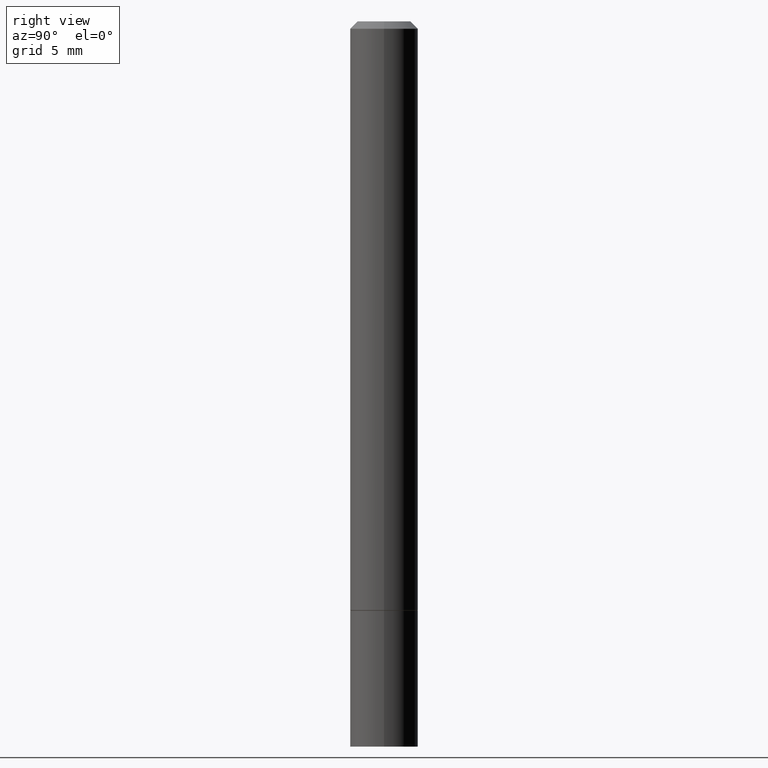
[diagram: clean part render]
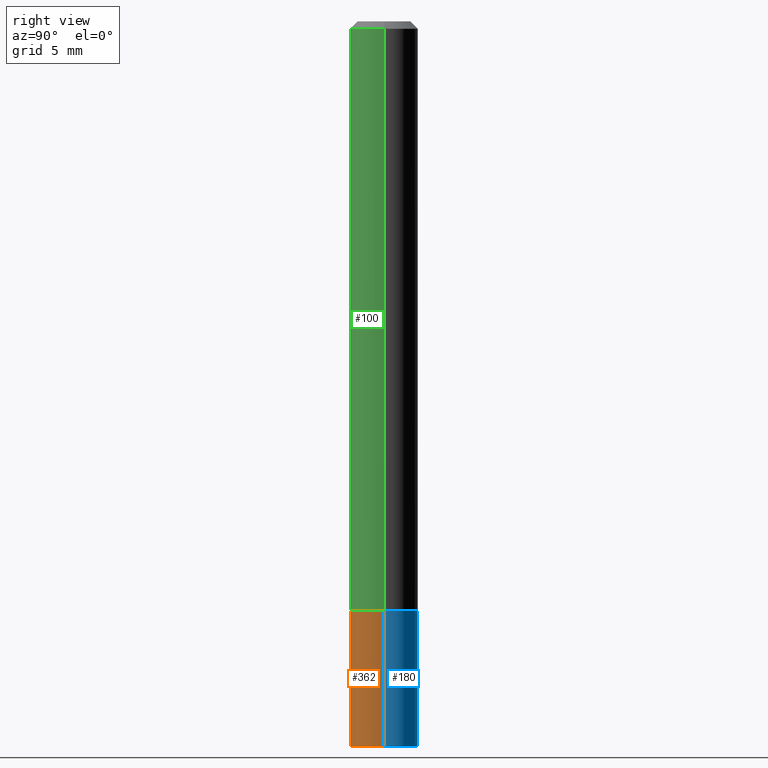
[diagram: same view with three faces highlighted in distinct colors, each labeled with its STEP entity id]
A machine part, right view with three faces highlighted in distinct colors.
Their STEP definitions:

[orange] entity #362 — the highlighted cylindrical surface (edge-blend (fillet) strip) has radius 2.3813 mm, axis along (-0, 0, 1).
#5 = ORIENTED_EDGE ( 'NONE', *, *, #114, .T. ) ;
#6 = VERTEX_POINT ( 'NONE', #240 ) ;
#31 = VERTEX_POINT ( 'NONE', #183 ) ;
#46 = CARTESIAN_POINT ( 'NONE',  ( 0.09375000000000001388, -6.546527510330875041E-16, 4.571415727308690506E-30 ) ) ;
#51 = CARTESIAN_POINT ( 'NONE',  ( -0.09375000000000001388, -5.662176111878106581E-15, -2.000000000000000000 ) ) ;
#55 = CYLINDRICAL_SURFACE ( 'NONE', #160, 0.09375000000000001388 ) ;
#61 = AXIS2_PLACEMENT_3D ( 'NONE', #239, #351, #62 ) ;
#62 = DIRECTION ( 'NONE',  ( 1.000000000000000000, -6.982962677686261189E-15, 0.000000000000000000 ) ) ;
#66 = CIRCLE ( 'NONE', #61, 0.09375000000000001388 ) ;
#70 = DIRECTION ( 'NONE',  ( -2.445468806185136597E-29, 3.491481338843145583E-15, 1.000000000000000000 ) ) ;
#86 = FACE_OUTER_BOUND ( 'NONE', #113, .T. ) ;
#87 = VERTEX_POINT ( 'NONE', #178 ) ;
#103 = LINE ( 'NONE', #134, #116 ) ;
#111 = ORIENTED_EDGE ( 'NONE', *, *, #258, .F. ) ;
#113 = EDGE_LOOP ( 'NONE', ( #111, #5, #319, #255 ) ) ;
#114 = EDGE_CURVE ( 'NONE', #322, #31, #66, .T. ) ;
#116 = VECTOR ( 'NONE', #246, 39.37007874015748143 ) ;
#131 = VECTOR ( 'NONE', #253, 39.37007874015748143 ) ;
#134 = CARTESIAN_POINT ( 'NONE',  ( -0.09375000000000001388, 6.661338147750940229E-16, -4.611501647113973995E-30 ) ) ;
#145 = EDGE_CURVE ( 'NONE', #6, #87, #218, .T. ) ;
#146 = DIRECTION ( 'NONE',  ( 1.000000000000000000, -6.982962677686265922E-15, 4.876176775795935793E-29 ) ) ;
#160 = AXIS2_PLACEMENT_3D ( 'NONE', #284, #282, #146 ) ;
#164 = LINE ( 'NONE', #46, #131 ) ;
#174 = AXIS2_PLACEMENT_3D ( 'NONE', #329, #70, #184 ) ;
#178 = CARTESIAN_POINT ( 'NONE',  ( 0.09375000000000001388, -6.328309926653198928E-15, -1.625000000000000000 ) ) ;
#183 = CARTESIAN_POINT ( 'NONE',  ( 0.09375000000000001388, -7.637615428719378669E-15, -2.000000000000000000 ) ) ;
#184 = DIRECTION ( 'NONE',  ( 1.000000000000000000, -6.982962677686261189E-15, 0.000000000000000000 ) ) ;
#185 = EDGE_CURVE ( 'NONE', #31, #87, #164, .T. ) ;
#218 = CIRCLE ( 'NONE', #174, 0.09375000000000001388 ) ;
#239 = CARTESIAN_POINT ( 'NONE',  ( 4.890937612370273194E-29, -6.982962677686291165E-15, -2.000000000000000000 ) ) ;
#240 = CARTESIAN_POINT ( 'NONE',  ( -0.09375000000000001388, -5.662176111878106581E-15, -1.625000000000000000 ) ) ;
#246 = DIRECTION ( 'NONE',  ( -2.445468806185136877E-29, 3.491481338843145188E-15, 1.000000000000000000 ) ) ;
#253 = DIRECTION ( 'NONE',  ( -2.445468806185136877E-29, 3.491481338843145188E-15, 1.000000000000000000 ) ) ;
#255 = ORIENTED_EDGE ( 'NONE', *, *, #145, .F. ) ;
#258 = EDGE_CURVE ( 'NONE', #322, #6, #103, .T. ) ;
#282 = DIRECTION ( 'NONE',  ( -2.445468806185136597E-29, 3.491481338843145583E-15, 1.000000000000000000 ) ) ;
#284 = CARTESIAN_POINT ( 'NONE',  ( 0.000000000000000000, 0.000000000000000000, 0.000000000000000000 ) ) ;
#319 = ORIENTED_EDGE ( 'NONE', *, *, #185, .T. ) ;
#322 = VERTEX_POINT ( 'NONE', #51 ) ;
#329 = CARTESIAN_POINT ( 'NONE',  ( 3.973886810050846970E-29, -5.673657175620112213E-15, -1.625000000000000000 ) ) ;
#351 = DIRECTION ( 'NONE',  ( -2.445468806185136597E-29, 3.491481338843145583E-15, 1.000000000000000000 ) ) ;
#362 = ADVANCED_FACE ( 'NONE', ( #86 ), #55, .T. ) ;

[blue] entity #180 — the highlighted cylindrical surface (edge-blend (fillet) strip) has radius 2.3813 mm, axis along (-0, 0, 1).
#2 = ORIENTED_EDGE ( 'NONE', *, *, #89, .T. ) ;
#6 = VERTEX_POINT ( 'NONE', #240 ) ;
#11 = EDGE_CURVE ( 'NONE', #87, #6, #217, .T. ) ;
#15 = DIRECTION ( 'NONE',  ( 1.000000000000000000, -6.982962677686261189E-15, 0.000000000000000000 ) ) ;
#31 = VERTEX_POINT ( 'NONE', #183 ) ;
#46 = CARTESIAN_POINT ( 'NONE',  ( 0.09375000000000001388, -6.546527510330875041E-16, 4.571415727308690506E-30 ) ) ;
#51 = CARTESIAN_POINT ( 'NONE',  ( -0.09375000000000001388, -5.662176111878106581E-15, -2.000000000000000000 ) ) ;
#64 = CARTESIAN_POINT ( 'NONE',  ( 4.890937612370273194E-29, -6.982962677686291165E-15, -2.000000000000000000 ) ) ;
#87 = VERTEX_POINT ( 'NONE', #178 ) ;
#89 = EDGE_CURVE ( 'NONE', #31, #322, #313, .T. ) ;
#93 = ORIENTED_EDGE ( 'NONE', *, *, #185, .F. ) ;
#96 = CARTESIAN_POINT ( 'NONE',  ( 3.973886810050846970E-29, -5.673657175620112213E-15, -1.625000000000000000 ) ) ;
#103 = LINE ( 'NONE', #134, #116 ) ;
#109 = ORIENTED_EDGE ( 'NONE', *, *, #11, .F. ) ;
#116 = VECTOR ( 'NONE', #246, 39.37007874015748143 ) ;
#130 = FACE_OUTER_BOUND ( 'NONE', #202, .T. ) ;
#131 = VECTOR ( 'NONE', #253, 39.37007874015748143 ) ;
#134 = CARTESIAN_POINT ( 'NONE',  ( -0.09375000000000001388, 6.661338147750940229E-16, -4.611501647113973995E-30 ) ) ;
#149 = DIRECTION ( 'NONE',  ( -2.445468806185136597E-29, 3.491481338843145583E-15, 1.000000000000000000 ) ) ;
#150 = DIRECTION ( 'NONE',  ( -2.445468806185136597E-29, 3.491481338843145583E-15, 1.000000000000000000 ) ) ;
#153 = ORIENTED_EDGE ( 'NONE', *, *, #258, .T. ) ;
#159 = CYLINDRICAL_SURFACE ( 'NONE', #321, 0.09375000000000001388 ) ;
#164 = LINE ( 'NONE', #46, #131 ) ;
#178 = CARTESIAN_POINT ( 'NONE',  ( 0.09375000000000001388, -6.328309926653198928E-15, -1.625000000000000000 ) ) ;
#180 = ADVANCED_FACE ( 'NONE', ( #130 ), #159, .T. ) ;
#183 = CARTESIAN_POINT ( 'NONE',  ( 0.09375000000000001388, -7.637615428719378669E-15, -2.000000000000000000 ) ) ;
#185 = EDGE_CURVE ( 'NONE', #31, #87, #164, .T. ) ;
#202 = EDGE_LOOP ( 'NONE', ( #2, #153, #109, #93 ) ) ;
#217 = CIRCLE ( 'NONE', #247, 0.09375000000000001388 ) ;
#222 = DIRECTION ( 'NONE',  ( -2.445468806185136597E-29, 3.491481338843145583E-15, 1.000000000000000000 ) ) ;
#240 = CARTESIAN_POINT ( 'NONE',  ( -0.09375000000000001388, -5.662176111878106581E-15, -1.625000000000000000 ) ) ;
#246 = DIRECTION ( 'NONE',  ( -2.445468806185136877E-29, 3.491481338843145188E-15, 1.000000000000000000 ) ) ;
#247 = AXIS2_PLACEMENT_3D ( 'NONE', #96, #150, #15 ) ;
#253 = DIRECTION ( 'NONE',  ( -2.445468806185136877E-29, 3.491481338843145188E-15, 1.000000000000000000 ) ) ;
#258 = EDGE_CURVE ( 'NONE', #322, #6, #103, .T. ) ;
#265 = DIRECTION ( 'NONE',  ( 1.000000000000000000, -6.982962677686261189E-15, 0.000000000000000000 ) ) ;
#275 = CARTESIAN_POINT ( 'NONE',  ( 0.000000000000000000, 0.000000000000000000, 0.000000000000000000 ) ) ;
#313 = CIRCLE ( 'NONE', #359, 0.09375000000000001388 ) ;
#321 = AXIS2_PLACEMENT_3D ( 'NONE', #275, #222, #361 ) ;
#322 = VERTEX_POINT ( 'NONE', #51 ) ;
#359 = AXIS2_PLACEMENT_3D ( 'NONE', #64, #149, #265 ) ;
#361 = DIRECTION ( 'NONE',  ( 1.000000000000000000, -6.982962677686265922E-15, 4.876176775795935793E-29 ) ) ;

[green] entity #100 — the highlighted cylindrical surface (edge-blend (fillet) strip) has radius 2.3812 mm, axis along (-0, 0, 1).
#4 = EDGE_CURVE ( 'NONE', #81, #285, #289, .T. ) ;
#7 = FACE_OUTER_BOUND ( 'NONE', #38, .T. ) ;
#10 = CYLINDRICAL_SURFACE ( 'NONE', #365, 0.09374999999999991673 ) ;
#12 = LINE ( 'NONE', #179, #211 ) ;
#21 = CARTESIAN_POINT ( 'NONE',  ( -0.09374999999999981959, 5.848231242562233185E-16, -0.02000000000000001429 ) ) ;
#30 = CARTESIAN_POINT ( 'NONE',  ( 0.09374999999999991673, -6.546527510330869125E-16, 4.571415727308685602E-30 ) ) ;
#38 = EDGE_LOOP ( 'NONE', ( #168, #69, #288, #147 ) ) ;
#68 = EDGE_CURVE ( 'NONE', #226, #204, #101, .T. ) ;
#69 = ORIENTED_EDGE ( 'NONE', *, *, #4, .T. ) ;
#78 = LINE ( 'NONE', #30, #295 ) ;
#81 = VERTEX_POINT ( 'NONE', #207 ) ;
#100 = ADVANCED_FACE ( 'NONE', ( #7 ), #10, .T. ) ;
#101 = CIRCLE ( 'NONE', #272, 0.09374999999999981959 ) ;
#104 = EDGE_CURVE ( 'NONE', #81, #226, #12, .T. ) ;
#105 = CARTESIAN_POINT ( 'NONE',  ( 0.09375000000000001388, -6.324818445314355132E-15, -1.623999999999999888 ) ) ;
#115 = DIRECTION ( 'NONE',  ( -2.445468806185136597E-29, 3.491481338843145583E-15, 1.000000000000000000 ) ) ;
#117 = DIRECTION ( 'NONE',  ( -2.445468806185136877E-29, 3.491481338843145188E-15, 1.000000000000000000 ) ) ;
#119 = DIRECTION ( 'NONE',  ( 1.000000000000000000, -6.982962677686267499E-15, 0.000000000000000000 ) ) ;
#122 = AXIS2_PLACEMENT_3D ( 'NONE', #324, #296, #236 ) ;
#147 = ORIENTED_EDGE ( 'NONE', *, *, #68, .F. ) ;
#152 = DIRECTION ( 'NONE',  ( -2.445468806185136597E-29, 3.491481338843145583E-15, 1.000000000000000000 ) ) ;
#168 = ORIENTED_EDGE ( 'NONE', *, *, #104, .F. ) ;
#171 = DIRECTION ( 'NONE',  ( -2.445468806185136877E-29, 3.491481338843145188E-15, 1.000000000000000000 ) ) ;
#179 = CARTESIAN_POINT ( 'NONE',  ( -0.09374999999999991673, 6.661338147750933326E-16, -4.611501647113969791E-30 ) ) ;
#204 = VERTEX_POINT ( 'NONE', #274 ) ;
#207 = CARTESIAN_POINT ( 'NONE',  ( -0.09375000000000001388, -2.203863845753969567E-15, -1.623999999999999888 ) ) ;
#211 = VECTOR ( 'NONE', #117, 39.37007874015748143 ) ;
#215 = DIRECTION ( 'NONE',  ( 1.000000000000000000, -6.982962677686266711E-15, 4.876176775795935793E-29 ) ) ;
#226 = VERTEX_POINT ( 'NONE', #21 ) ;
#236 = DIRECTION ( 'NONE',  ( 1.000000000000000000, -6.982962677686261189E-15, 0.000000000000000000 ) ) ;
#272 = AXIS2_PLACEMENT_3D ( 'NONE', #355, #152, #119 ) ;
#274 = CARTESIAN_POINT ( 'NONE',  ( 0.09374999999999981959, -7.130013140679428044E-16, -0.02000000000000001429 ) ) ;
#285 = VERTEX_POINT ( 'NONE', #105 ) ;
#288 = ORIENTED_EDGE ( 'NONE', *, *, #356, .T. ) ;
#289 = CIRCLE ( 'NONE', #122, 0.09375000000000001388 ) ;
#295 = VECTOR ( 'NONE', #171, 39.37007874015748143 ) ;
#296 = DIRECTION ( 'NONE',  ( -2.445468806185136597E-29, 3.491481338843145583E-15, 1.000000000000000000 ) ) ;
#324 = CARTESIAN_POINT ( 'NONE',  ( 3.971441341244661927E-29, -5.670165694281268417E-15, -1.623999999999999888 ) ) ;
#326 = CARTESIAN_POINT ( 'NONE',  ( 0.000000000000000000, 0.000000000000000000, 0.000000000000000000 ) ) ;
#355 = CARTESIAN_POINT ( 'NONE',  ( 4.890937612370275786E-31, -6.982962677686296539E-17, -0.02000000000000001429 ) ) ;
#356 = EDGE_CURVE ( 'NONE', #285, #204, #78, .T. ) ;
#365 = AXIS2_PLACEMENT_3D ( 'NONE', #326, #115, #215 ) ;